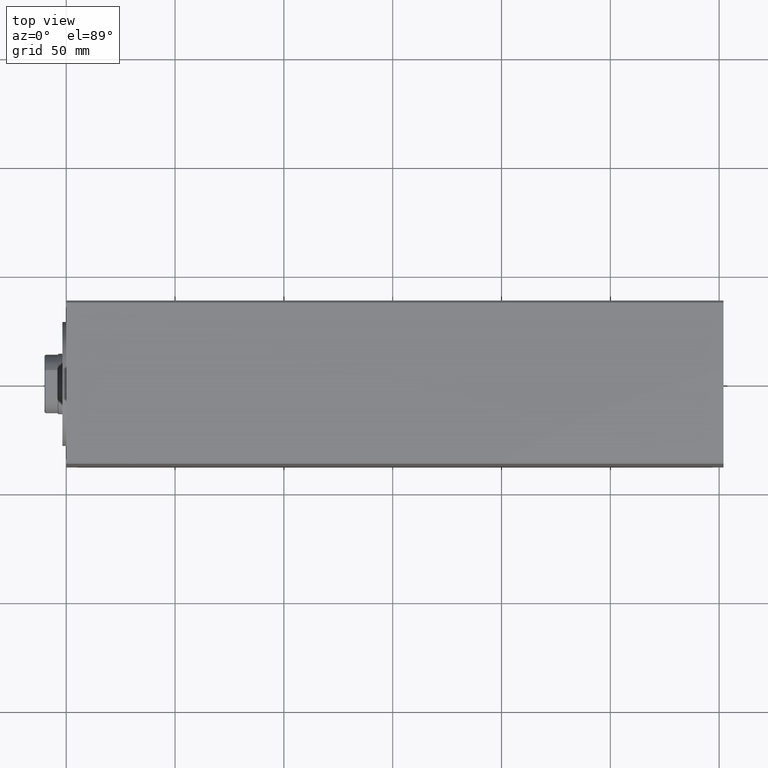
[diagram: clean part render]
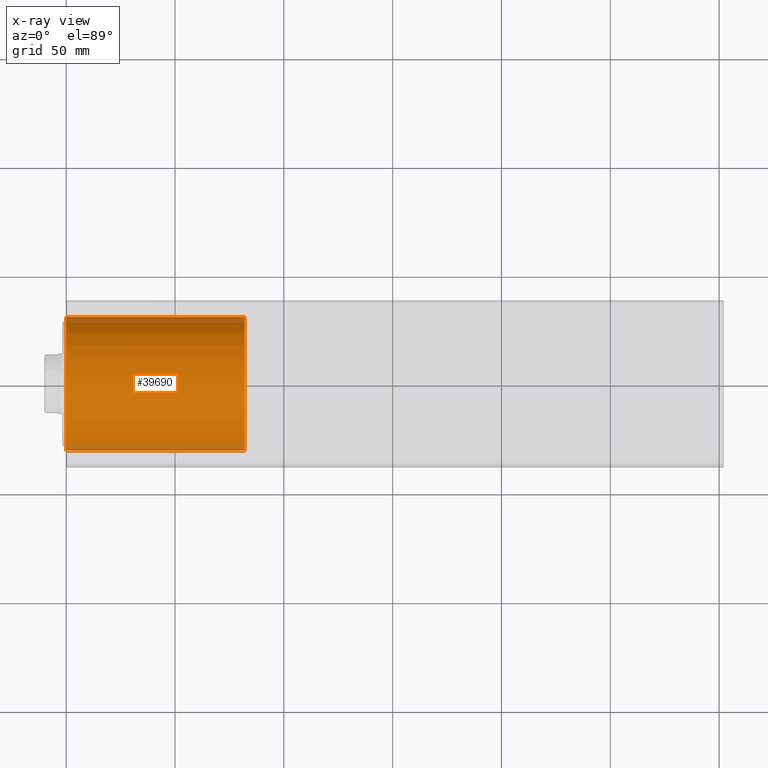
[diagram: x-ray — body ghosted, one internal face saturated and labeled with its STEP entity id]
A machine part, top view, then the same camera in x-ray: the body is ghosted and one INTERNAL B-rep face — a face not visible from any outside direction — is saturated and labeled: STEP entity #39690.
In plain terms, the highlighted cylindrical surface (partial cylindrical patch) has radius 30.75 mm, axis along (1, -0, 0).
Its self-contained STEP definition (entity closure, byte-faithful):
#484 = DIRECTION ( 'NONE',  ( 0.000000000000000000, 0.000000000000000000, 1.000000000000000000 ) ) ;
#952 = DIRECTION ( 'NONE',  ( 0.000000000000000000, 0.000000000000000000, 1.000000000000000000 ) ) ;
#976 = VERTEX_POINT ( 'NONE', #36054 ) ;
#4448 = CARTESIAN_POINT ( 'NONE',  ( 30.75000000000000355, 3.765788907378111328E-15, 82.00000000000000000 ) ) ;
#5325 = EDGE_CURVE ( 'NONE', #24243, #976, #34132, .T. ) ;
#5480 = VECTOR ( 'NONE', #21374, 1000.000000000000000 ) ;
#8478 = LINE ( 'NONE', #22501, #32510 ) ;
#8699 = DIRECTION ( 'NONE',  ( -0.000000000000000000, -0.000000000000000000, -1.000000000000000000 ) ) ;
#9122 = ORIENTED_EDGE ( 'NONE', *, *, #37524, .F. ) ;
#10445 = ORIENTED_EDGE ( 'NONE', *, *, #5325, .T. ) ;
#13318 = EDGE_CURVE ( 'NONE', #35282, #18618, #25895, .T. ) ;
#14545 = AXIS2_PLACEMENT_3D ( 'NONE', #31474, #952, #37932 ) ;
#14902 = AXIS2_PLACEMENT_3D ( 'NONE', #30343, #484, #20061 ) ;
#16809 = CARTESIAN_POINT ( 'NONE',  ( -30.75000000000000355, 0.000000000000000000, 82.00000000000000000 ) ) ;
#18618 = VERTEX_POINT ( 'NONE', #24023 ) ;
#20061 = DIRECTION ( 'NONE',  ( 1.000000000000000000, 0.000000000000000000, 0.000000000000000000 ) ) ;
#20240 = ORIENTED_EDGE ( 'NONE', *, *, #21609, .T. ) ;
#21374 = DIRECTION ( 'NONE',  ( -0.000000000000000000, -0.000000000000000000, -1.000000000000000000 ) ) ;
#21609 = EDGE_CURVE ( 'NONE', #35282, #24243, #8478, .T. ) ;
#22501 = CARTESIAN_POINT ( 'NONE',  ( -30.75000000000000355, 0.000000000000000000, 82.00000000000000000 ) ) ;
#22646 = FACE_OUTER_BOUND ( 'NONE', #33342, .T. ) ;
#23090 = CYLINDRICAL_SURFACE ( 'NONE', #29182, 30.75000000000000355 ) ;
#24023 = CARTESIAN_POINT ( 'NONE',  ( 30.75000000000000355, 3.765788907378111328E-15, 82.00000000000000000 ) ) ;
#24243 = VERTEX_POINT ( 'NONE', #30997 ) ;
#24500 = LINE ( 'NONE', #4448, #5480 ) ;
#25551 = ORIENTED_EDGE ( 'NONE', *, *, #13318, .F. ) ;
#25895 = CIRCLE ( 'NONE', #14545, 30.75000000000000355 ) ;
#29182 = AXIS2_PLACEMENT_3D ( 'NONE', #36694, #43596, #39373 ) ;
#30343 = CARTESIAN_POINT ( 'NONE',  ( 0.000000000000000000, 0.000000000000000000, 0.000000000000000000 ) ) ;
#30997 = CARTESIAN_POINT ( 'NONE',  ( -30.75000000000000355, 0.000000000000000000, 0.000000000000000000 ) ) ;
#31474 = CARTESIAN_POINT ( 'NONE',  ( 0.000000000000000000, 0.000000000000000000, 82.00000000000000000 ) ) ;
#32510 = VECTOR ( 'NONE', #8699, 1000.000000000000000 ) ;
#33342 = EDGE_LOOP ( 'NONE', ( #9122, #25551, #20240, #10445 ) ) ;
#34132 = CIRCLE ( 'NONE', #14902, 30.75000000000000355 ) ;
#35282 = VERTEX_POINT ( 'NONE', #16809 ) ;
#36054 = CARTESIAN_POINT ( 'NONE',  ( 30.75000000000000355, 3.765788907378111328E-15, 0.000000000000000000 ) ) ;
#36694 = CARTESIAN_POINT ( 'NONE',  ( 0.000000000000000000, 0.000000000000000000, 82.00000000000000000 ) ) ;
#37524 = EDGE_CURVE ( 'NONE', #18618, #976, #24500, .T. ) ;
#37932 = DIRECTION ( 'NONE',  ( 1.000000000000000000, 0.000000000000000000, 0.000000000000000000 ) ) ;
#39373 = DIRECTION ( 'NONE',  ( -1.000000000000000000, 0.000000000000000000, 0.000000000000000000 ) ) ;
#39690 = ADVANCED_FACE ( 'NONE', ( #22646 ), #23090, .T. ) ;
#43596 = DIRECTION ( 'NONE',  ( -0.000000000000000000, -0.000000000000000000, -1.000000000000000000 ) ) ;